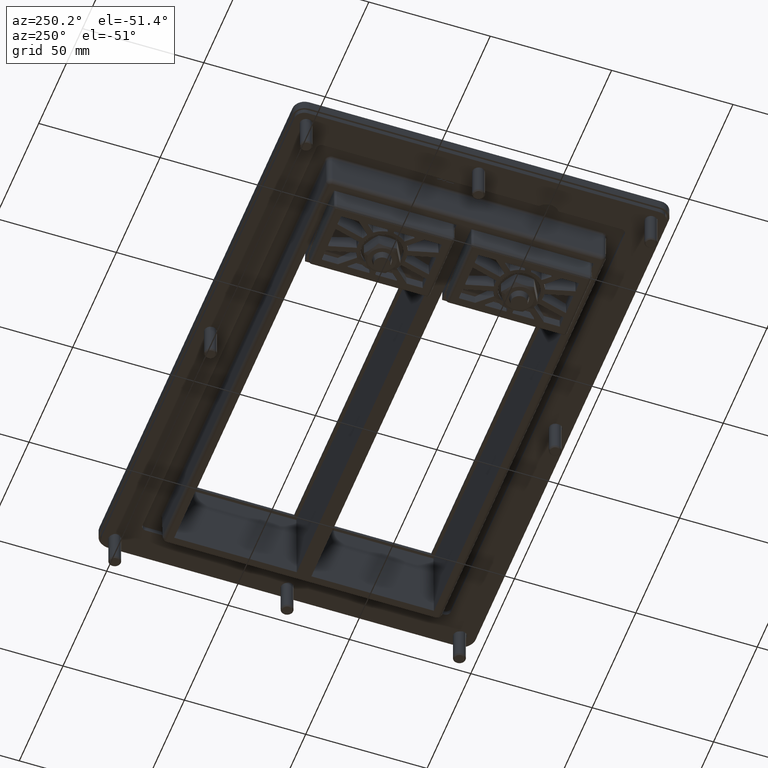
[diagram: clean part render]
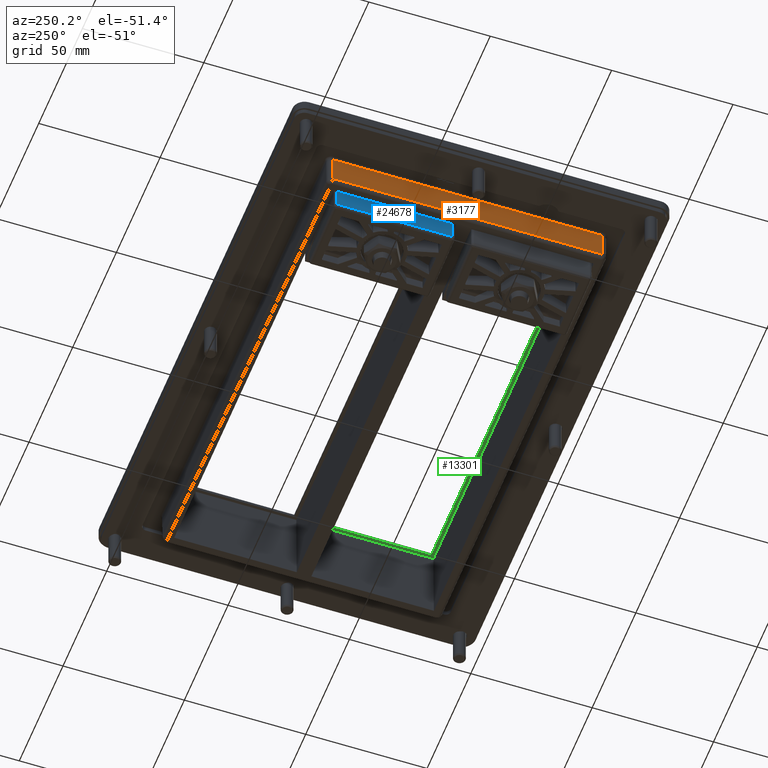
[diagram: same view with three faces highlighted in distinct colors, each labeled with its STEP entity id]
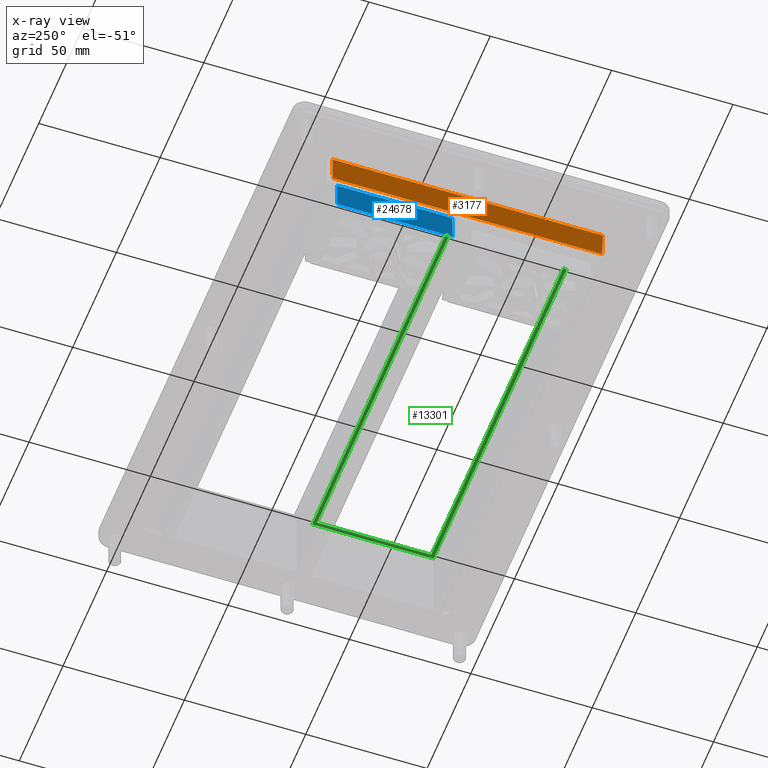
[diagram: x-ray of the same camera — body ghosted, the three highlighted faces saturated]
A machine part, auxiliary view with three faces highlighted in distinct colors.
The next image is the same camera in x-ray (body ghosted, the three faces saturated) — at least one of them is partly hidden behind the body in this view.
Their STEP definitions:

[orange] entity #3177 — the highlighted planar face has unit normal (-1, -0, -0.0087).
#1602=CARTESIAN_POINT('',(-95.617888870496856,-83.867965024368502,13.508726535498381));
#1603=VERTEX_POINT('',#1602);
#1710=CARTESIAN_POINT('',(-95.617888870496856,27.367965024368463,13.508726535498374));
#1711=VERTEX_POINT('',#1710);
#1745=CARTESIAN_POINT('',(-95.617888870496856,27.367965024368463,13.508726535498381));
#1746=DIRECTION('',(0.0,-1.0,0.0));
#1747=VECTOR('',#1746,111.23593004873698);
#1748=LINE('',#1745,#1747);
#1749=EDGE_CURVE('',#1711,#1603,#1748,.T.);
#1775=CARTESIAN_POINT('',(-95.517301424938438,27.267377578810049,1.982546929003254));
#1776=VERTEX_POINT('',#1775);
#1784=CARTESIAN_POINT('',(-95.517301424938452,27.267377578810049,1.982546929003254));
#1785=DIRECTION('',(-0.008726203243944,0.008726203243944,0.99992385047757));
#1786=VECTOR('',#1785,11.527057386410112);
#1787=LINE('',#1784,#1786);
#1788=EDGE_CURVE('',#1776,#1711,#1787,.T.);
#3097=CARTESIAN_POINT('',(-95.517301424938438,-83.767377578810084,1.982546929003254));
#3098=VERTEX_POINT('',#3097);
#3099=CARTESIAN_POINT('',(-95.617888870496856,-83.867965024368502,13.508726535498381));
#3100=DIRECTION('',(0.008726203243944,0.008726203243944,-0.99992385047757));
#3101=VECTOR('',#3100,11.527057386410119);
#3102=LINE('',#3099,#3101);
#3103=EDGE_CURVE('',#1603,#3098,#3102,.T.);
#3144=CARTESIAN_POINT('',(-95.517301424938438,-83.767377578810084,1.982546929003254));
#3145=DIRECTION('',(0.0,1.0,0.0));
#3146=VECTOR('',#3145,111.03475515762013);
#3147=LINE('',#3144,#3146);
#3148=EDGE_CURVE('',#3098,#1776,#3147,.T.);
#3166=CARTESIAN_POINT('',(-95.512272052660478,-89.429761526805351,1.406237948678498));
#3167=DIRECTION('',(-0.999961923064171,-3.036392E-016,-0.008726535498374));
#3168=DIRECTION('',(-0.008726535498374,0.0,0.999961923064171));
#3169=AXIS2_PLACEMENT_3D('',#3166,#3167,#3168);
#3170=PLANE('',#3169);
#3171=ORIENTED_EDGE('',*,*,#1749,.F.);
#3172=ORIENTED_EDGE('',*,*,#1788,.F.);
#3173=ORIENTED_EDGE('',*,*,#3148,.F.);
#3174=ORIENTED_EDGE('',*,*,#3103,.F.);
#3175=EDGE_LOOP('',(#3171,#3172,#3173,#3174));
#3176=FACE_OUTER_BOUND('',#3175,.T.);
#3177=ADVANCED_FACE('',(#3176),#3170,.T.);

[blue] entity #24678 — the highlighted planar face has unit normal (-0.9991, -0, 0.0419).
#24427=CARTESIAN_POINT('',(-91.027467902788928,23.865670778230438,-7.307729470937623));
#24428=VERTEX_POINT('',#24427);
#24511=CARTESIAN_POINT('',(-91.027467904286809,-23.865670778334852,-7.30772950669177));
#24512=VERTEX_POINT('',#24511);
#24564=CARTESIAN_POINT('',(-91.027467902788828,-23.865670778334852,-7.307729470937678));
#24565=DIRECTION('',(0.0,1.0,0.0));
#24566=VECTOR('',#24565,47.731341556565297);
#24567=LINE('',#24564,#24566);
#24568=EDGE_CURVE('',#24512,#24428,#24567,.T.);
#24627=CARTESIAN_POINT('',(-90.516950083318818,23.758993906118292,4.877486624856452));
#24628=VERTEX_POINT('',#24627);
#24629=CARTESIAN_POINT('',(-91.027467902788928,23.865670778230438,-7.307729470937623));
#24630=DIRECTION('',(0.041858169196533,-0.008746606664704,0.99908527691252));
#24631=VECTOR('',#24630,12.196372399211135);
#24632=LINE('',#24629,#24631);
#24633=EDGE_CURVE('',#24428,#24628,#24632,.T.);
#24655=CARTESIAN_POINT('',(-90.462887440664232,-24.750000000000068,6.167872500394164));
#24656=DIRECTION('',(-0.999123495679911,-2.025659E-015,0.041859770428849));
#24657=DIRECTION('',(0.0,1.0,0.0));
#24658=AXIS2_PLACEMENT_3D('',#24655,#24656,#24657);
#24659=PLANE('',#24658);
#24660=ORIENTED_EDGE('',*,*,#24568,.F.);
#24661=CARTESIAN_POINT('',(-90.516950083318733,-23.758993906118381,4.877486624856399));
#24662=VERTEX_POINT('',#24661);
#24663=CARTESIAN_POINT('',(-90.516950083318733,-23.758993906118381,4.877486624856399));
#24664=DIRECTION('',(-0.041858169196533,-0.008746606664702,-0.99908527691252));
#24665=VECTOR('',#24664,12.196372434996137);
#24666=LINE('',#24663,#24665);
#24667=EDGE_CURVE('',#24662,#24512,#24666,.T.);
#24668=ORIENTED_EDGE('',*,*,#24667,.F.);
#24669=CARTESIAN_POINT('',(-90.516950083318818,23.758993906118292,4.877486624856452));
#24670=DIRECTION('',(0.0,-1.0,0.0));
#24671=VECTOR('',#24670,47.517987812236676);
#24672=LINE('',#24669,#24671);
#24673=EDGE_CURVE('',#24628,#24662,#24672,.T.);
#24674=ORIENTED_EDGE('',*,*,#24673,.F.);
#24675=ORIENTED_EDGE('',*,*,#24633,.F.);
#24676=EDGE_LOOP('',(#24660,#24668,#24674,#24675));
#24677=FACE_OUTER_BOUND('',#24676,.T.);
#24678=ADVANCED_FACE('',(#24677),#24659,.T.);

[green] entity #13301 — the highlighted planar face has unit normal (0, 0, 1).
#5487=CARTESIAN_POINT('',(91.220740230695739,-31.529259769304296,32.000000000000007));
#5488=VERTEX_POINT('',#5487);
#5495=CARTESIAN_POINT('',(-61.220740230695725,-31.529259769304296,32.000000000000007));
#5496=VERTEX_POINT('',#5495);
#5497=CARTESIAN_POINT('',(-61.220740230695725,-31.529259769304296,32.000000000000007));
#5498=DIRECTION('',(1.0,0.0,0.0));
#5499=VECTOR('',#5498,152.44148046139148);
#5500=LINE('',#5497,#5499);
#5501=EDGE_CURVE('',#5496,#5488,#5500,.T.);
#5526=CARTESIAN_POINT('',(-61.22074023069576,-81.470740230695753,32.000000000000007));
#5527=VERTEX_POINT('',#5526);
#5534=CARTESIAN_POINT('',(91.220740230695782,-81.470740230695753,32.000000000000007));
#5535=VERTEX_POINT('',#5534);
#5536=CARTESIAN_POINT('',(91.220740230695782,-81.470740230695753,32.000000000000007));
#5537=DIRECTION('',(-1.0,0.0,0.0));
#5538=VECTOR('',#5537,152.44148046139154);
#5539=LINE('',#5536,#5538);
#5540=EDGE_CURVE('',#5535,#5527,#5539,.T.);
#13169=CARTESIAN_POINT('',(-61.220740230695725,-32.95000000000001,32.000000000000007));
#13170=VERTEX_POINT('',#13169);
#13171=CARTESIAN_POINT('',(-61.220740230695725,-32.95000000000001,32.000000000000007));
#13172=DIRECTION('',(0.0,1.0,0.0));
#13173=VECTOR('',#13172,1.420740230695714);
#13174=LINE('',#13171,#13173);
#13175=EDGE_CURVE('',#13170,#5496,#13174,.T.);
#13177=CARTESIAN_POINT('',(-61.220740230695739,-80.050000000000068,32.000000000000007));
#13178=VERTEX_POINT('',#13177);
#13185=CARTESIAN_POINT('',(-61.220740230695725,-81.470740230695753,32.000000000000007));
#13186=DIRECTION('',(0.0,1.0,0.0));
#13187=VECTOR('',#13186,1.420740230695685);
#13188=LINE('',#13185,#13187);
#13189=EDGE_CURVE('',#5527,#13178,#13188,.T.);
#13235=CARTESIAN_POINT('',(89.800000000000068,-80.050000000000026,32.000000000000007));
#13236=VERTEX_POINT('',#13235);
#13243=CARTESIAN_POINT('',(-61.220740230695739,-80.050000000000026,32.000000000000007));
#13244=DIRECTION('',(1.0,0.0,0.0));
#13245=VECTOR('',#13244,151.02074023069582);
#13246=LINE('',#13243,#13245);
#13247=EDGE_CURVE('',#13178,#13236,#13246,.T.);
#13258=CARTESIAN_POINT('',(89.800000000000068,-32.949999999999989,32.000000000000007));
#13259=VERTEX_POINT('',#13258);
#13260=CARTESIAN_POINT('',(89.800000000000068,-32.949999999999989,32.000000000000007));
#13261=DIRECTION('',(-1.0,0.0,0.0));
#13262=VECTOR('',#13261,151.02074023069579);
#13263=LINE('',#13260,#13262);
#13264=EDGE_CURVE('',#13259,#13170,#13263,.T.);
#13276=CARTESIAN_POINT('',(-68.84281425376534,-83.967814253765326,32.000000000000007));
#13277=DIRECTION('',(0.0,0.0,1.0));
#13278=DIRECTION('',(1.0,0.0,0.0));
#13279=AXIS2_PLACEMENT_3D('',#13276,#13277,#13278);
#13280=PLANE('',#13279);
#13281=ORIENTED_EDGE('',*,*,#13189,.T.);
#13282=ORIENTED_EDGE('',*,*,#13247,.T.);
#13283=CARTESIAN_POINT('',(89.800000000000068,-80.050000000000026,32.000000000000007));
#13284=DIRECTION('',(0.0,1.0,0.0));
#13285=VECTOR('',#13284,47.100000000000037);
#13286=LINE('',#13283,#13285);
#13287=EDGE_CURVE('',#13236,#13259,#13286,.T.);
#13288=ORIENTED_EDGE('',*,*,#13287,.T.);
#13289=ORIENTED_EDGE('',*,*,#13264,.T.);
#13290=ORIENTED_EDGE('',*,*,#13175,.T.);
#13291=ORIENTED_EDGE('',*,*,#5501,.T.);
#13292=CARTESIAN_POINT('',(91.220740230695782,-31.529259769304296,32.000000000000007));
#13293=DIRECTION('',(0.0,-1.0,0.0));
#13294=VECTOR('',#13293,49.941480461391457);
#13295=LINE('',#13292,#13294);
#13296=EDGE_CURVE('',#5488,#5535,#13295,.T.);
#13297=ORIENTED_EDGE('',*,*,#13296,.T.);
#13298=ORIENTED_EDGE('',*,*,#5540,.T.);
#13299=EDGE_LOOP('',(#13281,#13282,#13288,#13289,#13290,#13291,#13297,#13298));
#13300=FACE_OUTER_BOUND('',#13299,.T.);
#13301=ADVANCED_FACE('',(#13300),#13280,.F.);